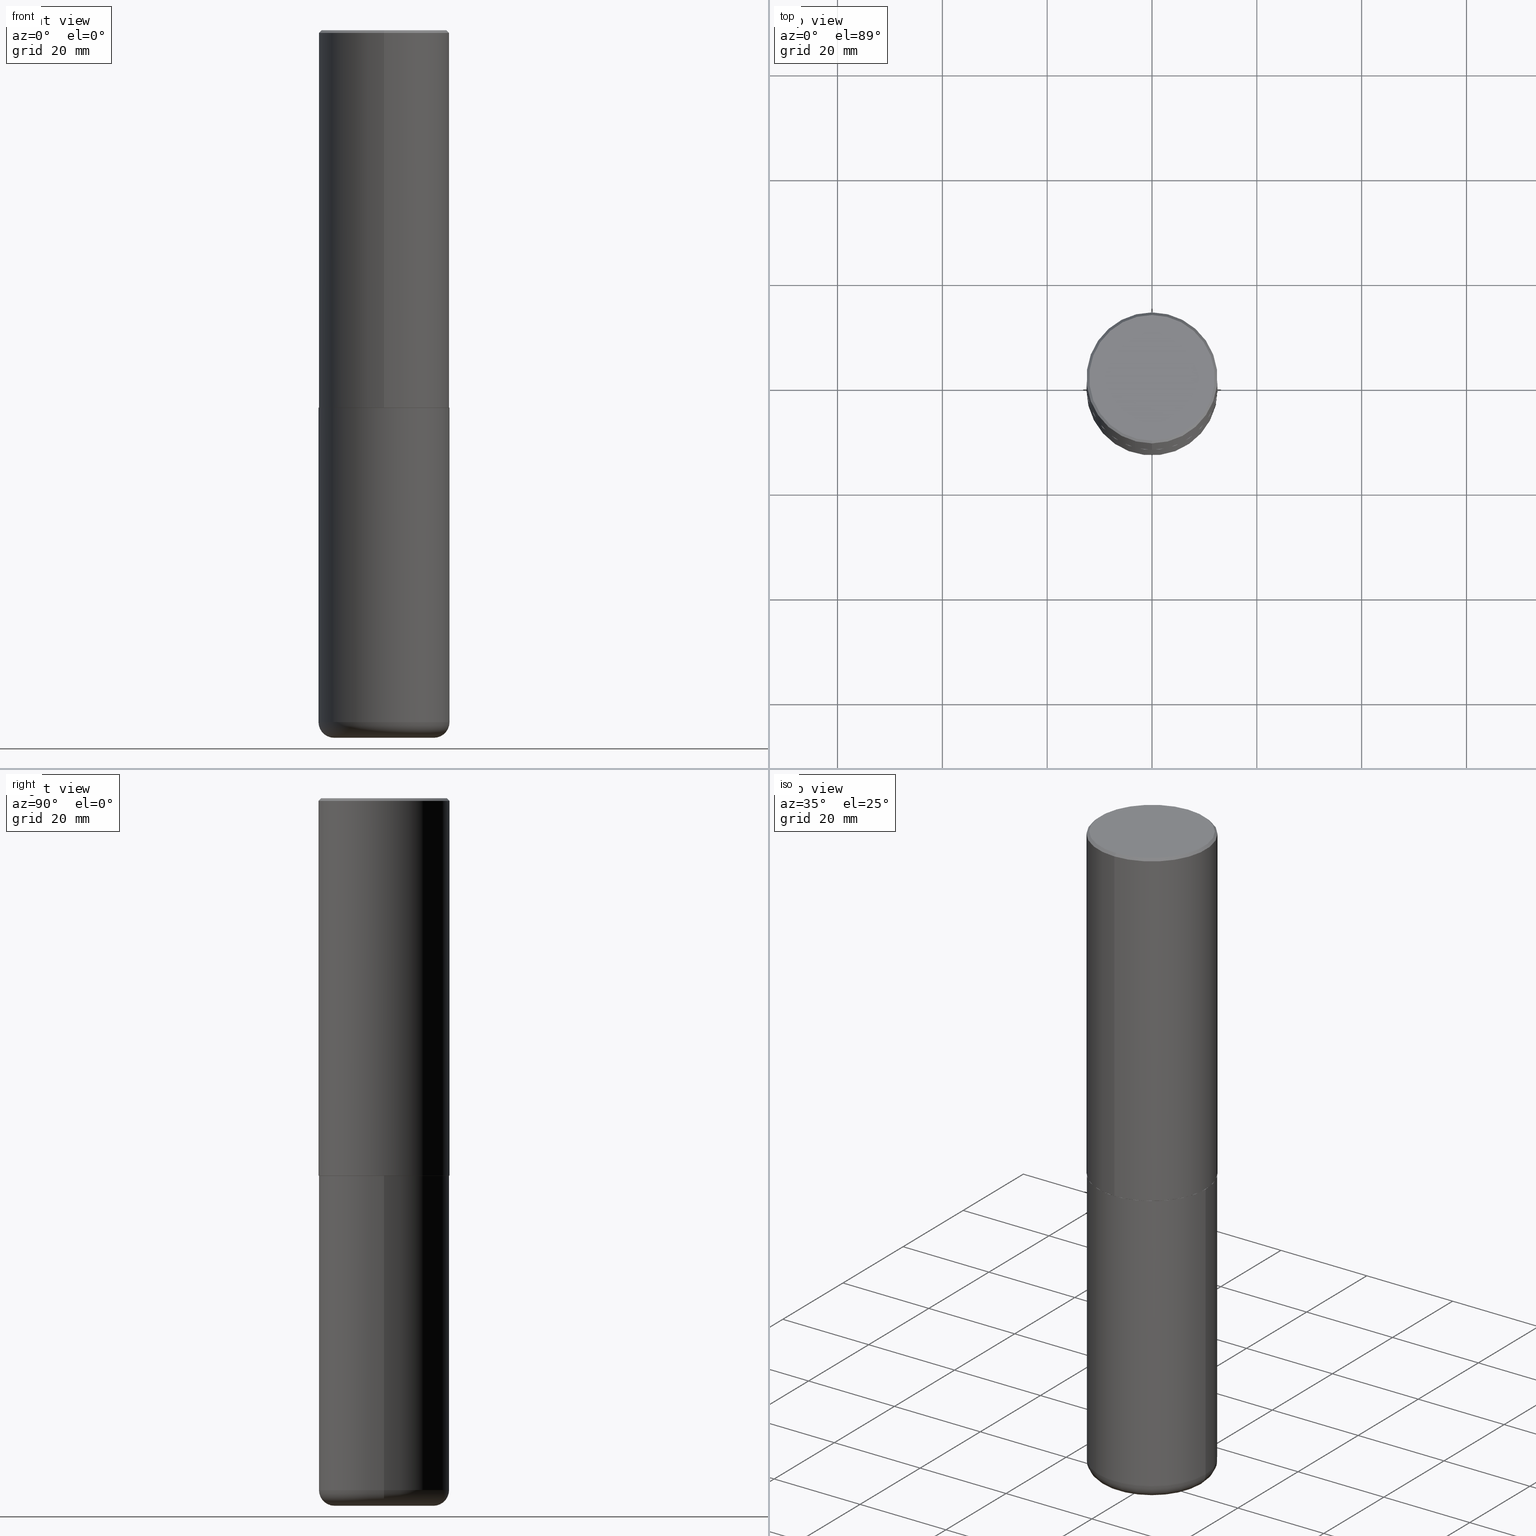
[diagram: canonical four-view strip — front | top / right | iso, engineering-drawing reading convention]
A machine part, canonical four-view strip (front | top / right | iso — engineering-drawing reading convention). The complete STEP part file that produces these views, byte-faithful:
ISO-10303-21;
HEADER;
FILE_DESCRIPTION (( 'STEP AP203' ),
    '1' );
FILE_NAME ('74879.STEP',
    '2024-05-02T19:26:49',
    ( '' ),
    ( '' ),
    'SwSTEP 2.0',
    'SolidWorks 2023',
    '' );
FILE_SCHEMA (( 'CONFIG_CONTROL_DESIGN' ));
ENDSEC;

DATA;
#1 = CARTESIAN_POINT ( 'NONE',  ( 1.270885683886353718E-28, -1.814487936983394718E-14, -5.196900000000000297 ) ) ;
#2 = EDGE_CURVE ( 'NONE', #266, #325, #334, .T. ) ;
#3 = DIRECTION ( 'NONE',  ( -2.445229172240879899E-29, 3.491824508290438613E-15, 1.000000000000000000 ) ) ;
#4 = ORIENTED_EDGE ( 'NONE', *, *, #130, .F. ) ;
#5 = DIRECTION ( 'NONE',  ( -2.445468806185136597E-29, 3.491481338843145583E-15, 1.000000000000000000 ) ) ;
#6 = CIRCLE ( 'NONE', #219, 0.4921500000000003094 ) ;
#7 = APPROVAL_PERSON_ORGANIZATION ( #375, #123, #170 ) ;
#8 = ORIENTED_EDGE ( 'NONE', *, *, #324, .T. ) ;
#9 = CARTESIAN_POINT ( 'NONE',  ( 3.436665081823296565E-15, 0.4921499999999999764, -0.02000000000000182535 ) ) ;
#10 = EDGE_CURVE ( 'NONE', #325, #43, #274, .T. ) ;
#11 = EDGE_LOOP ( 'NONE', ( #4, #75 ) ) ;
#12 = ORIENTED_EDGE ( 'NONE', *, *, #130, .T. ) ;
#13 = CARTESIAN_POINT ( 'NONE',  ( 6.932170424893007423E-29, -9.897302151218665974E-15, -2.834700000000000220 ) ) ;
#14 = ORIENTED_EDGE ( 'NONE', *, *, #357, .F. ) ;
#15 = COORDINATED_UNIVERSAL_TIME_OFFSET ( 5, 0, .BEHIND. ) ;
#16 = CC_DESIGN_PERSON_AND_ORGANIZATION_ASSIGNMENT ( #332, #46, ( #106 ) ) ;
#17 = CARTESIAN_POINT ( 'NONE',  ( 3.366835455046432873E-15, 0.4721499999999997921, -1.366781089788163134E-15 ) ) ;
#18 = ORIENTED_EDGE ( 'NONE', *, *, #349, .F. ) ;
#19 = CALENDAR_DATE ( 2024, 2, 5 ) ;
#20 = DIRECTION ( 'NONE',  ( -2.445229172240879899E-29, 3.491824508290438219E-15, 1.000000000000000000 ) ) ;
#21 = AXIS2_PLACEMENT_3D ( 'NONE', #149, #410, #378 ) ;
#22 = FACE_OUTER_BOUND ( 'NONE', #328, .T. ) ;
#23 = APPROVAL ( #306, 'UNSPECIFIED' ) ;
#24 = PERSON_AND_ORGANIZATION_ROLE ( 'creator' ) ;
#25 = CARTESIAN_POINT ( 'NONE',  ( 6.931491134551223323E-29, -9.898274933650907147E-15, -2.834700000000000220 ) ) ;
#26 = DIRECTION ( 'NONE',  ( -1.000000000000000000, 6.982962677686265922E-15, -4.876176775795935793E-29 ) ) ;
#27 = CIRCLE ( 'NONE', #371, 0.1181000000000000383 ) ;
#28 = CARTESIAN_POINT ( 'NONE',  ( 4.890458344481786073E-31, -6.983649016580912824E-17, -0.02000000000000010797 ) ) ;
#29 = CARTESIAN_POINT ( 'NONE',  ( -3.307789109625542536E-15, -0.4721499999999997921, 1.930548793390495776E-15 ) ) ;
#30 = CARTESIAN_POINT ( 'NONE',  ( 0.000000000000000000, 0.000000000000000000, 0.000000000000000000 ) ) ;
#31 = AXIS2_PLACEMENT_3D ( 'NONE', #399, #137, #194 ) ;
#32 = PLANE ( 'NONE',  #50 ) ;
#33 = ADVANCED_FACE ( 'NONE', ( #403 ), #407, .T. ) ;
#34 = DIRECTION ( 'NONE',  ( -2.445229172240879899E-29, 3.491824508290438219E-15, 1.000000000000000000 ) ) ;
#35 = CARTESIAN_POINT ( 'NONE',  ( 3.493383360364602601E-15, 0.4911499999999900390, -2.834700000000001996 ) ) ;
#36 = PRODUCT ( '74879', '74879', '', ( #396 ) ) ;
#37 = ORIENTED_EDGE ( 'NONE', *, *, #357, .T. ) ;
#38 = DIRECTION ( 'NONE',  ( -6.982962677686265922E-15, -1.000000000000000000, 3.337287582609300506E-15 ) ) ;
#39 = AXIS2_PLACEMENT_3D ( 'NONE', #255, #386, #182 ) ;
#40 = LOCAL_TIME ( 15, 26, 49.00000000000000000, #273 ) ;
#41 = ORIENTED_EDGE ( 'NONE', *, *, #354, .F. ) ;
#42 = FACE_OUTER_BOUND ( 'NONE', #11, .T. ) ;
#43 = VERTEX_POINT ( 'NONE', #56 ) ;
#44 = DIRECTION ( 'NONE',  ( 1.000000000000000000, -6.982962677686265922E-15, 0.000000000000000000 ) ) ;
#45 = ORIENTED_EDGE ( 'NONE', *, *, #401, .F. ) ;
#46 = PERSON_AND_ORGANIZATION_ROLE ( 'creator' ) ;
#47 = AXIS2_PLACEMENT_3D ( 'NONE', #55, #180, #411 ) ;
#48 = CC_DESIGN_PERSON_AND_ORGANIZATION_ASSIGNMENT ( #248, #113, ( #139 ) ) ;
#49 = ORIENTED_EDGE ( 'NONE', *, *, #10, .F. ) ;
#50 = AXIS2_PLACEMENT_3D ( 'NONE', #126, #353, #26 ) ;
#51 = SHAPE_DEFINITION_REPRESENTATION ( #267, #387 ) ;
#52 = FACE_OUTER_BOUND ( 'NONE', #333, .T. ) ;
#53 = CARTESIAN_POINT ( 'NONE',  ( -0.3740499999999999381, -1.548709426672329248E-14, -5.196900000000000297 ) ) ;
#54 = CIRCLE ( 'NONE', #269, 0.4921500000000000319 ) ;
#55 = CARTESIAN_POINT ( 'NONE',  ( 6.931491134551223323E-29, -9.898274933650907147E-15, -2.834700000000000220 ) ) ;
#56 = CARTESIAN_POINT ( 'NONE',  ( -3.376394089603258656E-15, -0.4921500000000000874, -0.01999999999999838712 ) ) ;
#57 = ADVANCED_FACE ( 'NONE', ( #247 ), #374, .T. ) ;
#58 = DIRECTION ( 'NONE',  ( -2.445468806185136597E-29, 3.491481338843145583E-15, 1.000000000000000000 ) ) ;
#59 = EDGE_CURVE ( 'NONE', #408, #297, #153, .T. ) ;
#60 = CLOSED_SHELL ( 'NONE', ( #414, #87, #330, #57, #173, #405 ) ) ;
#61 = CARTESIAN_POINT ( 'NONE',  ( 1.299766670487400218E-28, -1.855722331595131973E-14, -5.315000000000000391 ) ) ;
#62 = DIRECTION ( 'NONE',  ( -6.982962677686265922E-15, -1.000000000000000000, 3.330506545156063891E-15 ) ) ;
#63 = ADVANCED_FACE ( 'NONE', ( #370 ), #198, .T. ) ;
#64 = CARTESIAN_POINT ( 'NONE',  ( -3.436665081823228329E-15, -0.4921500000000101904, -2.833699999999998997 ) ) ;
#65 = AXIS2_PLACEMENT_3D ( 'NONE', #212, #82, #210 ) ;
#66 = APPROVAL_PERSON_ORGANIZATION ( #143, #276, #373 ) ;
#67 = DIRECTION ( 'NONE',  ( -2.445468806185136877E-29, 3.491481338843145188E-15, 1.000000000000000000 ) ) ;
#68 = EDGE_LOOP ( 'NONE', ( #272, #368, #172, #45 ) ) ;
#69 = EDGE_CURVE ( 'NONE', #225, #128, #417, .T. ) ;
#70 = VERTEX_POINT ( 'NONE', #17 ) ;
#71 = VERTEX_POINT ( 'NONE', #278 ) ;
#72 = DIRECTION ( 'NONE',  ( -2.445229172240879899E-29, 3.491824508290438219E-15, 1.000000000000000000 ) ) ;
#73 = CIRCLE ( 'NONE', #226, 0.3740499999999999381 ) ;
#74 = VERTEX_POINT ( 'NONE', #144 ) ;
#75 = ORIENTED_EDGE ( 'NONE', *, *, #316, .F. ) ;
#76 = DIRECTION ( 'NONE',  ( 2.438088387897960049E-29, -3.491481338843145188E-15, -1.000000000000000000 ) ) ;
#77 = EDGE_LOOP ( 'NONE', ( #133, #204 ) ) ;
#78 = APPLICATION_CONTEXT ( 'configuration controlled 3d designs of mechanical parts and assemblies' ) ;
#79 = APPROVAL_DATE_TIME ( #115, #123 ) ;
#80 = CC_DESIGN_PERSON_AND_ORGANIZATION_ASSIGNMENT ( #329, #192, ( #36 ) ) ;
#81 = EDGE_LOOP ( 'NONE', ( #206, #359, #165, #231 ) ) ;
#82 = DIRECTION ( 'NONE',  ( 2.445229172240879899E-29, -3.491824508290438219E-15, -1.000000000000000000 ) ) ;
#83 = AXIS2_PLACEMENT_3D ( 'NONE', #309, #380, #86 ) ;
#84 = AXIS2_PLACEMENT_3D ( 'NONE', #196, #72, #38 ) ;
#85 = CALENDAR_DATE ( 2024, 2, 5 ) ;
#86 = DIRECTION ( 'NONE',  ( 1.000000000000000000, -6.982962677686265922E-15, 0.000000000000000000 ) ) ;
#87 = ADVANCED_FACE ( 'NONE', ( #52 ), #355, .T. ) ;
#88 = ORIENTED_EDGE ( 'NONE', *, *, #69, .T. ) ;
#89 = CARTESIAN_POINT ( 'NONE',  ( -0.4921499999999999764, -1.464794329579061349E-14, -5.196900000000000297 ) ) ;
#90 = DIRECTION ( 'NONE',  ( 1.000000000000000000, -6.982962677686265133E-15, 0.000000000000000000 ) ) ;
#91 = DIRECTION ( 'NONE',  ( -6.982962677686265922E-15, -1.000000000000000000, 3.495297233588267070E-15 ) ) ;
#92 = PLANE ( 'NONE',  #39 ) ;
#93 = DIRECTION ( 'NONE',  ( 1.000000000000000000, -6.982962677686265133E-15, 0.000000000000000000 ) ) ;
#94 = ADVANCED_FACE ( 'NONE', ( #178 ), #385, .T. ) ;
#95 = DIRECTION ( 'NONE',  ( 1.000000000000000000, -6.982962677686270655E-15, 0.000000000000000000 ) ) ;
#96 = DIRECTION ( 'NONE',  ( -2.445468806185136877E-29, 3.491481338843145188E-15, 1.000000000000000000 ) ) ;
#97 = AXIS2_PLACEMENT_3D ( 'NONE', #28, #282, #259 ) ;
#98 = CIRCLE ( 'NONE', #235, 0.4921499999999999764 ) ;
#99 = DIRECTION ( 'NONE',  ( -6.982962677686265922E-15, -1.000000000000000000, 3.337287582609300506E-15 ) ) ;
#100 = EDGE_CURVE ( 'NONE', #185, #325, #147, .T. ) ;
#101 = EDGE_LOOP ( 'NONE', ( #195, #229, #361, #392 ) ) ;
#102 =( CONVERSION_BASED_UNIT ( 'INCH', #360 ) LENGTH_UNIT ( ) NAMED_UNIT ( #381 ) );
#103 = ORIENTED_EDGE ( 'NONE', *, *, #193, .F. ) ;
#104 = ORIENTED_EDGE ( 'NONE', *, *, #349, .T. ) ;
#105 = VECTOR ( 'NONE', #246, 39.37007874015748143 ) ;
#106 = PRODUCT_DEFINITION_FORMATION_WITH_SPECIFIED_SOURCE ( 'ANY', '', #36, .NOT_KNOWN. ) ;
#107 = EDGE_LOOP ( 'NONE', ( #351, #234, #162, #238 ) ) ;
#108 = ADVANCED_FACE ( 'NONE', ( #22 ), #412, .T. ) ;
#109 = DIRECTION ( 'NONE',  ( 4.937700262164532265E-15, 0.7071067811865429098, -0.7071067811865521247 ) ) ;
#110 = ORIENTED_EDGE ( 'NONE', *, *, #199, .F. ) ;
#111 = COORDINATED_UNIVERSAL_TIME_OFFSET ( 5, 0, .BEHIND. ) ;
#112 = DIRECTION ( 'NONE',  ( -6.982962677686266711E-15, -1.000000000000000000, 3.491824508290437824E-15 ) ) ;
#113 = PERSON_AND_ORGANIZATION_ROLE ( 'classification_officer' ) ;
#114 = CARTESIAN_POINT ( 'NONE',  ( 0.000000000000000000, 0.000000000000000000, 0.000000000000000000 ) ) ;
#115 = DATE_AND_TIME ( #303, #209 ) ;
#116 = CARTESIAN_POINT ( 'NONE',  ( -3.436665081823297354E-15, -0.4921500000000001984, 1.718501431755139742E-15 ) ) ;
#117 = PERSON_AND_ORGANIZATION ( #233, #250 ) ;
#118 = LINE ( 'NONE', #312, #281 ) ;
#119 = CC_DESIGN_DATE_AND_TIME_ASSIGNMENT ( #141, #377, ( #135 ) ) ;
#120 = LINE ( 'NONE', #352, #270 ) ;
#121 = DIRECTION ( 'NONE',  ( -6.982962677686266711E-15, -1.000000000000000000, 3.491481338843145583E-15 ) ) ;
#122 = DIRECTION ( 'NONE',  ( 5.024295867789434219E-15, 0.7071067811867430830, 0.7071067811863519514 ) ) ;
#123 = APPROVAL ( #211, 'UNSPECIFIED' ) ;
#124 = AXIS2_PLACEMENT_3D ( 'NONE', #418, #217, #252 ) ;
#125 = FACE_OUTER_BOUND ( 'NONE', #101, .T. ) ;
#126 = CARTESIAN_POINT ( 'NONE',  ( 6.932170424893007423E-29, -9.897302151218665974E-15, -2.834700000000000220 ) ) ;
#127 = FACE_OUTER_BOUND ( 'NONE', #81, .T. ) ;
#128 = VERTEX_POINT ( 'NONE', #89 ) ;
#129 = TOROIDAL_SURFACE ( 'NONE', #308, 0.3740499999999999381, 0.1181000000000000660 ) ;
#130 = EDGE_CURVE ( 'NONE', #74, #225, #73, .T. ) ;
#131 = VECTOR ( 'NONE', #290, 39.37007874015748143 ) ;
#132 = CARTESIAN_POINT ( 'NONE',  ( -3.376394089603258656E-15, -0.4921500000000000874, -0.01999999999999838712 ) ) ;
#133 = ORIENTED_EDGE ( 'NONE', *, *, #336, .T. ) ;
#134 = EDGE_LOOP ( 'NONE', ( #14, #394, #293, #103 ) ) ;
#135 = PRODUCT_DEFINITION ( 'UNKNOWN', '', #106, #358 ) ;
#136 = EDGE_LOOP ( 'NONE', ( #323, #37, #400, #49 ) ) ;
#137 = DIRECTION ( 'NONE',  ( -2.445229172240879899E-29, 3.491824508290438219E-15, 1.000000000000000000 ) ) ;
#138 = CLOSED_SHELL ( 'NONE', ( #94, #305, #63, #108, #33, #343, #213, #296 ) ) ;
#139 = SECURITY_CLASSIFICATION ( '', '', #369 ) ;
#140 = ORIENTED_EDGE ( 'NONE', *, *, #384, .F. ) ;
#141 = DATE_AND_TIME ( #19, #148 ) ;
#142 = DIRECTION ( 'NONE',  ( -2.445229172240879899E-29, 3.491824508290438219E-15, 1.000000000000000000 ) ) ;
#143 = PERSON_AND_ORGANIZATION ( #233, #250 ) ;
#144 = CARTESIAN_POINT ( 'NONE',  ( 0.3740499999999999381, -2.116920050553986882E-14, -5.315000000000000391 ) ) ;
#145 = APPROVAL_DATE_TIME ( #242, #276 ) ;
#146 = AXIS2_PLACEMENT_3D ( 'NONE', #311, #413, #382 ) ;
#147 = LINE ( 'NONE', #345, #163 ) ;
#148 = LOCAL_TIME ( 15, 26, 49.00000000000000000, #245 ) ;
#149 = CARTESIAN_POINT ( 'NONE',  ( 4.890458344481786073E-31, -6.983649016580912824E-17, -0.02000000000000010797 ) ) ;
#150 = DATE_AND_TIME ( #85, #200 ) ;
#151 = DIRECTION ( 'NONE',  ( -4.937700262165896205E-15, -0.7071067811867381980, 0.7071067811863568364 ) ) ;
#152 = LINE ( 'NONE', #347, #243 ) ;
#153 = CIRCLE ( 'NONE', #83, 0.4921499999999999764 ) ;
#154 = LOCAL_TIME ( 15, 26, 49.00000000000000000, #277 ) ;
#155 = CARTESIAN_POINT ( 'NONE',  ( 1.270885683886353718E-28, -1.814487936983394718E-14, -5.196900000000000297 ) ) ;
#156 = EDGE_CURVE ( 'NONE', #397, #185, #208, .T. ) ;
#157 = DIRECTION ( 'NONE',  ( 1.000000000000000000, -6.982962677686265133E-15, 0.000000000000000000 ) ) ;
#158 = CARTESIAN_POINT ( 'NONE',  ( 1.270885683886353718E-28, -1.814487936983394718E-14, -5.196900000000000297 ) ) ;
#159 = AXIS2_PLACEMENT_3D ( 'NONE', #383, #258, #91 ) ;
#160 = PLANE ( 'NONE',  #146 ) ;
#161 = FACE_OUTER_BOUND ( 'NONE', #107, .T. ) ;
#162 = ORIENTED_EDGE ( 'NONE', *, *, #336, .F. ) ;
#163 = VECTOR ( 'NONE', #151, 39.37007874015748143 ) ;
#164 = CARTESIAN_POINT ( 'NONE',  ( 0.000000000000000000, 0.000000000000000000, 0.000000000000000000 ) ) ;
#165 = ORIENTED_EDGE ( 'NONE', *, *, #100, .T. ) ;
#166 = EDGE_CURVE ( 'NONE', #128, #408, #118, .T. ) ;
#167 = ORIENTED_EDGE ( 'NONE', *, *, #181, .F. ) ;
#168 = DIRECTION ( 'NONE',  ( -1.000000000000000000, 6.982962677686265922E-15, -4.876176775795935793E-29 ) ) ;
#169 = ORIENTED_EDGE ( 'NONE', *, *, #59, .F. ) ;
#170 = APPROVAL_ROLE ( '' ) ;
#171 = AXIS2_PLACEMENT_3D ( 'NONE', #25, #20, #376 ) ;
#172 = ORIENTED_EDGE ( 'NONE', *, *, #280, .T. ) ;
#173 = ADVANCED_FACE ( 'NONE', ( #125 ), #129, .T. ) ;
#174 = PERSON_AND_ORGANIZATION ( #233, #250 ) ;
#175 = DIRECTION ( 'NONE',  ( 1.000000000000000000, -6.982962677686265922E-15, 4.876176775795935793E-29 ) ) ;
#176 = CC_DESIGN_DATE_AND_TIME_ASSIGNMENT ( #150, #337, ( #139 ) ) ;
#177 = APPROVAL_DATE_TIME ( #409, #23 ) ;
#178 = FACE_OUTER_BOUND ( 'NONE', #223, .T. ) ;
#179 = CARTESIAN_POINT ( 'NONE',  ( 6.929045905378983914E-29, -9.894783109142616722E-15, -2.833700000000000330 ) ) ;
#180 = DIRECTION ( 'NONE',  ( -2.445229172240879899E-29, 3.491824508290438219E-15, 1.000000000000000000 ) ) ;
#181 = EDGE_CURVE ( 'NONE', #325, #266, #6, .T. ) ;
#182 = DIRECTION ( 'NONE',  ( 6.982962677686265922E-15, 1.000000000000000000, -3.491824508290438613E-15 ) ) ;
#183 = MANIFOLD_SOLID_BREP ( 'Body-Move/Copy2[1]', #60 ) ;
#184 = CIRCLE ( 'NONE', #159, 0.4921500000000000319 ) ;
#185 = VERTEX_POINT ( 'NONE', #189 ) ;
#186 = CC_DESIGN_APPROVAL ( #276, ( #106 ) ) ;
#187 = EDGE_CURVE ( 'NONE', #268, #70, #214, .T. ) ;
#188 = CARTESIAN_POINT ( 'NONE',  ( 6.929045905378983914E-29, -9.894783109142616722E-15, -2.833700000000000330 ) ) ;
#189 = CARTESIAN_POINT ( 'NONE',  ( -3.429682119145539948E-15, -0.4911500000000098565, -2.834699999999998443 ) ) ;
#190 = CARTESIAN_POINT ( 'NONE',  ( 0.4921499999999999764, -1.333396723304196175E-14, -2.834700000000000220 ) ) ;
#191 = AXIS2_PLACEMENT_3D ( 'NONE', #114, #142, #112 ) ;
#192 = PERSON_AND_ORGANIZATION_ROLE ( 'design_owner' ) ;
#193 = EDGE_CURVE ( 'NONE', #71, #43, #390, .T. ) ;
#194 = DIRECTION ( 'NONE',  ( -6.982962677686265922E-15, -1.000000000000000000, 3.491824508290437824E-15 ) ) ;
#195 = ORIENTED_EDGE ( 'NONE', *, *, #69, .F. ) ;
#196 = CARTESIAN_POINT ( 'NONE',  ( 6.931491134551223323E-29, -9.898274933650907147E-15, -2.834700000000000220 ) ) ;
#197 = ORIENTED_EDGE ( 'NONE', *, *, #100, .F. ) ;
#198 = CONICAL_SURFACE ( 'NONE', #65, 0.4921500000000000319, 0.7853981633974452814 ) ;
#199 = EDGE_CURVE ( 'NONE', #74, #261, #27, .T. ) ;
#200 = LOCAL_TIME ( 15, 26, 49.00000000000000000, #111 ) ;
#201 = DIRECTION ( 'NONE',  ( 1.000000000000000000, 0.000000000000000000, 0.000000000000000000 ) ) ;
#202 = ORIENTED_EDGE ( 'NONE', *, *, #401, .T. ) ;
#203 = DIRECTION ( 'NONE',  ( 1.000000000000000000, -6.982962677686265922E-15, 4.876176775795935793E-29 ) ) ;
#204 = ORIENTED_EDGE ( 'NONE', *, *, #59, .T. ) ;
#205 = PERSON_AND_ORGANIZATION ( #233, #250 ) ;
#206 = ORIENTED_EDGE ( 'NONE', *, *, #287, .F. ) ;
#207 = CALENDAR_DATE ( 2024, 2, 5 ) ;
#208 = CIRCLE ( 'NONE', #47, 0.4911499999999999755 ) ;
#209 = LOCAL_TIME ( 15, 26, 49.00000000000000000, #15 ) ;
#210 = DIRECTION ( 'NONE',  ( 6.982962677686265922E-15, 1.000000000000000000, -3.495297233588267070E-15 ) ) ;
#211 = APPROVAL_STATUS ( 'not_yet_approved' ) ;
#212 = CARTESIAN_POINT ( 'NONE',  ( 4.890458344481786073E-31, -6.983649016580912824E-17, -0.02000000000000010797 ) ) ;
#213 = ADVANCED_FACE ( 'NONE', ( #221 ), #160, .F. ) ;
#214 = CIRCLE ( 'NONE', #124, 0.4721499999999997921 ) ;
#215 = CARTESIAN_POINT ( 'NONE',  ( 1.299766670487400218E-28, -1.855722331595131973E-14, -5.315000000000000391 ) ) ;
#216 = AXIS2_PLACEMENT_3D ( 'NONE', #61, #222, #93 ) ;
#217 = DIRECTION ( 'NONE',  ( -2.445229172240879899E-29, 3.491824508290438219E-15, 1.000000000000000000 ) ) ;
#218 = DIRECTION ( 'NONE',  ( -2.445229172240879899E-29, 3.491824508290438219E-15, 1.000000000000000000 ) ) ;
#219 = AXIS2_PLACEMENT_3D ( 'NONE', #188, #315, #62 ) ;
#220 = APPROVAL_PERSON_ORGANIZATION ( #174, #23, #402 ) ;
#221 = FACE_OUTER_BOUND ( 'NONE', #331, .T. ) ;
#222 = DIRECTION ( 'NONE',  ( -2.445468806185136597E-29, 3.491481338843145583E-15, 1.000000000000000000 ) ) ;
#223 = EDGE_LOOP ( 'NONE', ( #295, #339, #167, #197 ) ) ;
#224 = CARTESIAN_POINT ( 'NONE',  ( -0.3740499999999999381, -1.527369075431564084E-14, -5.315000000000000391 ) ) ;
#225 = VERTEX_POINT ( 'NONE', #224 ) ;
#226 = AXIS2_PLACEMENT_3D ( 'NONE', #215, #344, #90 ) ;
#227 = VECTOR ( 'NONE', #3, 39.37007874015748143 ) ;
#228 = CYLINDRICAL_SURFACE ( 'NONE', #391, 0.4921499999999999764 ) ;
#229 = ORIENTED_EDGE ( 'NONE', *, *, #316, .T. ) ;
#230 = EDGE_CURVE ( 'NONE', #128, #261, #363, .T. ) ;
#231 = ORIENTED_EDGE ( 'NONE', *, *, #2, .F. ) ;
#232 = CARTESIAN_POINT ( 'NONE',  ( 0.000000000000000000, 0.000000000000000000, 0.000000000000000000 ) ) ;
#233 = PERSON ( 'UNSPECIFIED', 'UNSPECIFIED', 'UNSPECIFIED', ('UNSPECIFIED'), ('UNSPECIFIED'), ('UNSPECIFIED') ) ;
#234 = ORIENTED_EDGE ( 'NONE', *, *, #166, .T. ) ;
#235 = AXIS2_PLACEMENT_3D ( 'NONE', #13, #5, #44 ) ;
#236 = EDGE_LOOP ( 'NONE', ( #104, #364 ) ) ;
#237 = CARTESIAN_POINT ( 'NONE',  ( 1.299766670487400218E-28, -1.855722331595131973E-14, -5.315000000000000391 ) ) ;
#238 = ORIENTED_EDGE ( 'NONE', *, *, #324, .F. ) ;
#239 = PERSON_AND_ORGANIZATION_ROLE ( 'design_supplier' ) ;
#240 = CC_DESIGN_PERSON_AND_ORGANIZATION_ASSIGNMENT ( #117, #24, ( #135 ) ) ;
#241 = CARTESIAN_POINT ( 'NONE',  ( 0.000000000000000000, 0.000000000000000000, 0.000000000000000000 ) ) ;
#242 = DATE_AND_TIME ( #404, #40 ) ;
#243 = VECTOR ( 'NONE', #122, 39.37007874015748143 ) ;
#244 = DIRECTION ( 'NONE',  ( -6.982962677686265922E-15, -1.000000000000000000, 3.330506545156063891E-15 ) ) ;
#245 = COORDINATED_UNIVERSAL_TIME_OFFSET ( 5, 0, .BEHIND. ) ;
#246 = DIRECTION ( 'NONE',  ( -2.445229172240879899E-29, 3.491824508290438613E-15, 1.000000000000000000 ) ) ;
#247 = FACE_OUTER_BOUND ( 'NONE', #299, .T. ) ;
#248 = PERSON_AND_ORGANIZATION ( #233, #250 ) ;
#249 = DIRECTION ( 'NONE',  ( -2.445229172240879899E-29, 3.491824508290438219E-15, 1.000000000000000000 ) ) ;
#250 = ORGANIZATION ( 'UNSPECIFIED', 'UNSPECIFIED', '' ) ;
#251 = EDGE_CURVE ( 'NONE', #261, #128, #54, .T. ) ;
#252 = DIRECTION ( 'NONE',  ( -6.982962677686265922E-15, -1.000000000000000000, 3.491824508290437824E-15 ) ) ;
#253 = FACE_OUTER_BOUND ( 'NONE', #236, .T. ) ;
#254 = CC_DESIGN_PERSON_AND_ORGANIZATION_ASSIGNMENT ( #205, #239, ( #106 ) ) ;
#255 = CARTESIAN_POINT ( 'NONE',  ( 3.297005828269569180E-15, 0.4721499999999997921, -1.507723015688746393E-15 ) ) ;
#256 = AXIS2_PLACEMENT_3D ( 'NONE', #310, #279, #307 ) ;
#257 = AXIS2_PLACEMENT_3D ( 'NONE', #232, #362, #201 ) ;
#258 = DIRECTION ( 'NONE',  ( -2.445229172240879899E-29, 3.491824508290438219E-15, 1.000000000000000000 ) ) ;
#259 = DIRECTION ( 'NONE',  ( -6.982962677686265922E-15, -1.000000000000000000, 3.495297233588267070E-15 ) ) ;
#260 = LINE ( 'NONE', #9, #365 ) ;
#261 = VERTEX_POINT ( 'NONE', #285 ) ;
#262 = AXIS2_PLACEMENT_3D ( 'NONE', #179, #249, #244 ) ;
#263 = PLANE ( 'NONE',  #275 ) ;
#264 = ORIENTED_EDGE ( 'NONE', *, *, #193, .T. ) ;
#265 =( NAMED_UNIT ( * ) SI_UNIT ( $, .STERADIAN. ) SOLID_ANGLE_UNIT ( ) );
#266 = VERTEX_POINT ( 'NONE', #416 ) ;
#267 = PRODUCT_DEFINITION_SHAPE ( 'NONE', 'NONE',  #135 ) ;
#268 = VERTEX_POINT ( 'NONE', #29 ) ;
#269 = AXIS2_PLACEMENT_3D ( 'NONE', #1, #58, #286 ) ;
#270 = VECTOR ( 'NONE', #96, 39.37007874015748143 ) ;
#271 = LINE ( 'NONE', #322, #227 ) ;
#272 = ORIENTED_EDGE ( 'NONE', *, *, #187, .F. ) ;
#273 = COORDINATED_UNIVERSAL_TIME_OFFSET ( 5, 0, .BEHIND. ) ;
#274 = LINE ( 'NONE', #116, #105 ) ;
#275 = AXIS2_PLACEMENT_3D ( 'NONE', #237, #76, #168 ) ;
#276 = APPROVAL ( #302, 'UNSPECIFIED' ) ;
#277 = COORDINATED_UNIVERSAL_TIME_OFFSET ( 5, 0, .BEHIND. ) ;
#278 = CARTESIAN_POINT ( 'NONE',  ( 3.436665081823296565E-15, 0.4921499999999999764, -0.02000000000000182535 ) ) ;
#279 = DIRECTION ( 'NONE',  ( -2.445468806185136597E-29, 3.491481338843145583E-15, 1.000000000000000000 ) ) ;
#280 = EDGE_CURVE ( 'NONE', #43, #71, #184, .T. ) ;
#281 = VECTOR ( 'NONE', #67, 39.37007874015748143 ) ;
#282 = DIRECTION ( 'NONE',  ( -2.445229172240879899E-29, 3.491824508290438219E-15, 1.000000000000000000 ) ) ;
#283 = CIRCLE ( 'NONE', #216, 0.3740499999999999381 ) ;
#284 = DIRECTION ( 'NONE',  ( 1.000000000000000000, -6.982962677686266711E-15, 4.883557194083112340E-29 ) ) ;
#285 = CARTESIAN_POINT ( 'NONE',  ( 0.4921499999999999764, -2.158154445165724138E-14, -5.196900000000000297 ) ) ;
#286 = DIRECTION ( 'NONE',  ( 1.000000000000000000, -6.982962677686265133E-15, 0.000000000000000000 ) ) ;
#287 = EDGE_CURVE ( 'NONE', #397, #266, #152, .T. ) ;
#288 = CIRCLE ( 'NONE', #31, 0.4721499999999997921 ) ;
#289 = FACE_OUTER_BOUND ( 'NONE', #136, .T. ) ;
#290 = DIRECTION ( 'NONE',  ( -4.851104656540949287E-15, -0.7071067811865477948, -0.7071067811865472397 ) ) ;
#291 = ORIENTED_EDGE ( 'NONE', *, *, #230, .T. ) ;
#292 = APPLICATION_CONTEXT ( 'configuration controlled 3d designs of mechanical parts and assemblies' ) ;
#293 = ORIENTED_EDGE ( 'NONE', *, *, #10, .T. ) ;
#294 =( LENGTH_UNIT ( ) NAMED_UNIT ( * ) SI_UNIT ( $, .METRE. ) );
#295 = ORIENTED_EDGE ( 'NONE', *, *, #384, .T. ) ;
#296 = ADVANCED_FACE ( 'NONE', ( #253 ), #92, .F. ) ;
#297 = VERTEX_POINT ( 'NONE', #190 ) ;
#298 = CARTESIAN_POINT ( 'NONE',  ( -0.4921499999999999764, -1.052415468648297289E-14, -2.834700000000000220 ) ) ;
#299 = EDGE_LOOP ( 'NONE', ( #366, #291, #8, #169 ) ) ;
#300 = AXIS2_PLACEMENT_3D ( 'NONE', #241, #340, #175 ) ;
#301 = CC_DESIGN_SECURITY_CLASSIFICATION ( #139, ( #106 ) ) ;
#302 = APPROVAL_STATUS ( 'not_yet_approved' ) ;
#303 = CALENDAR_DATE ( 2024, 2, 5 ) ;
#304 = DIRECTION ( 'NONE',  ( -1.000000000000000000, 7.105427357601001859E-15, 0.000000000000000000 ) ) ;
#305 = ADVANCED_FACE ( 'NONE', ( #289 ), #388, .T. ) ;
#306 = APPROVAL_STATUS ( 'not_yet_approved' ) ;
#307 = DIRECTION ( 'NONE',  ( 1.000000000000000000, -6.982962677686266711E-15, 4.883557194083112340E-29 ) ) ;
#308 = AXIS2_PLACEMENT_3D ( 'NONE', #158, #350, #284 ) ;
#309 = CARTESIAN_POINT ( 'NONE',  ( 6.932170424893007423E-29, -9.897302151218665974E-15, -2.834700000000000220 ) ) ;
#310 = CARTESIAN_POINT ( 'NONE',  ( 1.270885683886353718E-28, -1.814487936983394718E-14, -5.196900000000000297 ) ) ;
#311 = CARTESIAN_POINT ( 'NONE',  ( 6.931491134551223323E-29, -9.898274933650907147E-15, -2.834700000000000220 ) ) ;
#312 = CARTESIAN_POINT ( 'NONE',  ( -0.4921499999999999764, 3.496936074043332897E-15, -2.420853904668951509E-29 ) ) ;
#313 = CONICAL_SURFACE ( 'NONE', #335, 0.4911499999999999755, 0.7853981633977213939 ) ;
#314 = MANIFOLD_SOLID_BREP ( 'Body-Move/Copy2[2]', #138 ) ;
#315 = DIRECTION ( 'NONE',  ( -2.445229172240879899E-29, 3.491824508290438219E-15, 1.000000000000000000 ) ) ;
#316 = EDGE_CURVE ( 'NONE', #225, #74, #283, .T. ) ;
#317 = CARTESIAN_POINT ( 'NONE',  ( 0.3740499999999999381, -2.075685655942249311E-14, -5.196900000000000297 ) ) ;
#318 = FACE_OUTER_BOUND ( 'NONE', #77, .T. ) ;
#319 = AXIS2_PLACEMENT_3D ( 'NONE', #155, #415, #157 ) ;
#320 = APPLICATION_PROTOCOL_DEFINITION ( 'international standard', 'config_control_design', 1994, #78 ) ;
#321 = UNCERTAINTY_MEASURE_WITH_UNIT (LENGTH_MEASURE( 1.000000000000000082E-05 ), #102, 'distance_accuracy_value', 'NONE');
#322 = CARTESIAN_POINT ( 'NONE',  ( 3.496936074043333686E-15, 0.4921500000000001984, -1.718501431755139742E-15 ) ) ;
#323 = ORIENTED_EDGE ( 'NONE', *, *, #181, .T. ) ;
#324 = EDGE_CURVE ( 'NONE', #261, #297, #120, .T. ) ;
#325 = VERTEX_POINT ( 'NONE', #64 ) ;
#326 = CIRCLE ( 'NONE', #84, 0.4911499999999999755 ) ;
#327 = APPLICATION_PROTOCOL_DEFINITION ( 'international standard', 'config_control_design', 1994, #292 ) ;
#328 = EDGE_LOOP ( 'NONE', ( #41, #18, #202, #264 ) ) ;
#329 = PERSON_AND_ORGANIZATION ( #233, #250 ) ;
#330 = ADVANCED_FACE ( 'NONE', ( #318 ), #32, .F. ) ;
#331 = EDGE_LOOP ( 'NONE', ( #140, #395 ) ) ;
#332 = PERSON_AND_ORGANIZATION ( #233, #250 ) ;
#333 = EDGE_LOOP ( 'NONE', ( #12, #88, #406, #110 ) ) ;
#334 = CIRCLE ( 'NONE', #262, 0.4921500000000003094 ) ;
#335 = AXIS2_PLACEMENT_3D ( 'NONE', #356, #34, #99 ) ;
#336 = EDGE_CURVE ( 'NONE', #297, #408, #98, .T. ) ;
#337 = DATE_TIME_ROLE ( 'classification_date' ) ;
#338 = DIRECTION ( 'NONE',  ( 7.105427357601001859E-15, 1.000000000000000000, -3.491481338843145583E-15 ) ) ;
#339 = ORIENTED_EDGE ( 'NONE', *, *, #287, .T. ) ;
#340 = DIRECTION ( 'NONE',  ( -2.445468806185136597E-29, 3.491481338843145583E-15, 1.000000000000000000 ) ) ;
#341 = AXIS2_PLACEMENT_3D ( 'NONE', #53, #338, #304 ) ;
#342 =( GEOMETRIC_REPRESENTATION_CONTEXT ( 3 ) GLOBAL_UNCERTAINTY_ASSIGNED_CONTEXT ( ( #321 ) ) GLOBAL_UNIT_ASSIGNED_CONTEXT ( ( #102, #367, #265 ) ) REPRESENTATION_CONTEXT ( 'NONE', 'WORKASPACE' ) );
#343 = ADVANCED_FACE ( 'NONE', ( #127 ), #313, .T. ) ;
#344 = DIRECTION ( 'NONE',  ( -2.445468806185136597E-29, 3.491481338843145583E-15, 1.000000000000000000 ) ) ;
#345 = CARTESIAN_POINT ( 'NONE',  ( -3.429682119145539948E-15, -0.4911500000000098565, -2.834699999999998443 ) ) ;
#346 = PRODUCT_RELATED_PRODUCT_CATEGORY ( 'detail', '', ( #36 ) ) ;
#347 = CARTESIAN_POINT ( 'NONE',  ( 3.489830646685800520E-15, 0.4911499999999900390, -2.834700000000001996 ) ) ;
#348 = DIRECTION ( 'NONE',  ( -6.982962677686266711E-15, -1.000000000000000000, 3.491824508290437824E-15 ) ) ;
#349 = EDGE_CURVE ( 'NONE', #70, #268, #288, .T. ) ;
#350 = DIRECTION ( 'NONE',  ( -2.445468806185136597E-29, 3.491481338843145583E-15, 1.000000000000000000 ) ) ;
#351 = ORIENTED_EDGE ( 'NONE', *, *, #251, .T. ) ;
#352 = CARTESIAN_POINT ( 'NONE',  ( 0.4921499999999999764, -3.436665081823295777E-15, 2.399810400207969603E-29 ) ) ;
#353 = DIRECTION ( 'NONE',  ( 2.438088387897960049E-29, -3.491481338843145188E-15, -1.000000000000000000 ) ) ;
#354 = EDGE_CURVE ( 'NONE', #268, #43, #393, .T. ) ;
#355 = TOROIDAL_SURFACE ( 'NONE', #256, 0.3740499999999999381, 0.1181000000000000660 ) ;
#356 = CARTESIAN_POINT ( 'NONE',  ( 6.931491134551223323E-29, -9.898274933650907147E-15, -2.834700000000000220 ) ) ;
#357 = EDGE_CURVE ( 'NONE', #266, #71, #271, .T. ) ;
#358 = DESIGN_CONTEXT ( 'detailed design', #78, 'design' ) ;
#359 = ORIENTED_EDGE ( 'NONE', *, *, #156, .T. ) ;
#360 = LENGTH_MEASURE_WITH_UNIT ( LENGTH_MEASURE( 0.02539999999999999897 ), #294 );
#361 = ORIENTED_EDGE ( 'NONE', *, *, #199, .T. ) ;
#362 = DIRECTION ( 'NONE',  ( 0.000000000000000000, 0.000000000000000000, 1.000000000000000000 ) ) ;
#363 = CIRCLE ( 'NONE', #319, 0.4921500000000000319 ) ;
#364 = ORIENTED_EDGE ( 'NONE', *, *, #187, .T. ) ;
#365 = VECTOR ( 'NONE', #109, 39.37007874015748143 ) ;
#366 = ORIENTED_EDGE ( 'NONE', *, *, #166, .F. ) ;
#367 =( NAMED_UNIT ( * ) PLANE_ANGLE_UNIT ( ) SI_UNIT ( $, .RADIAN. ) );
#368 = ORIENTED_EDGE ( 'NONE', *, *, #354, .T. ) ;
#369 = SECURITY_CLASSIFICATION_LEVEL ( 'unclassified' ) ;
#370 = FACE_OUTER_BOUND ( 'NONE', #68, .T. ) ;
#371 = AXIS2_PLACEMENT_3D ( 'NONE', #317, #121, #95 ) ;
#372 = CC_DESIGN_APPROVAL ( #23, ( #135 ) ) ;
#373 = APPROVAL_ROLE ( '' ) ;
#374 = CYLINDRICAL_SURFACE ( 'NONE', #300, 0.4921499999999999764 ) ;
#375 = PERSON_AND_ORGANIZATION ( #233, #250 ) ;
#376 = DIRECTION ( 'NONE',  ( -6.982962677686265922E-15, -1.000000000000000000, 3.337287582609300506E-15 ) ) ;
#377 = DATE_TIME_ROLE ( 'creation_date' ) ;
#378 = DIRECTION ( 'NONE',  ( 6.982962677686265922E-15, 1.000000000000000000, -3.495297233588267070E-15 ) ) ;
#379 = CC_DESIGN_APPROVAL ( #123, ( #139 ) ) ;
#380 = DIRECTION ( 'NONE',  ( -2.445468806185136597E-29, 3.491481338843145583E-15, 1.000000000000000000 ) ) ;
#381 = DIMENSIONAL_EXPONENTS ( 1.000000000000000000, 0.000000000000000000, 0.000000000000000000, 0.000000000000000000, 0.000000000000000000, 0.000000000000000000, 0.000000000000000000 ) ;
#382 = DIRECTION ( 'NONE',  ( -6.982962677686265922E-15, -1.000000000000000000, 3.491824508290438613E-15 ) ) ;
#383 = CARTESIAN_POINT ( 'NONE',  ( 4.890458344481786073E-31, -6.983649016580912824E-17, -0.02000000000000010797 ) ) ;
#384 = EDGE_CURVE ( 'NONE', #185, #397, #326, .T. ) ;
#385 = CONICAL_SURFACE ( 'NONE', #171, 0.4911499999999999755, 0.7853981633977213939 ) ;
#386 = DIRECTION ( 'NONE',  ( 2.445229172240879339E-29, -3.491824508290438613E-15, -1.000000000000000000 ) ) ;
#387 = ADVANCED_BREP_SHAPE_REPRESENTATION ( '74879', ( #183, #314, #257 ), #342 ) ;
#388 = CYLINDRICAL_SURFACE ( 'NONE', #398, 0.4921500000000001984 ) ;
#389 = DIRECTION ( 'NONE',  ( -2.445468806185136597E-29, 3.491481338843145583E-15, 1.000000000000000000 ) ) ;
#390 = CIRCLE ( 'NONE', #97, 0.4921500000000000319 ) ;
#391 = AXIS2_PLACEMENT_3D ( 'NONE', #164, #389, #203 ) ;
#392 = ORIENTED_EDGE ( 'NONE', *, *, #230, .F. ) ;
#393 = LINE ( 'NONE', #132, #131 ) ;
#394 = ORIENTED_EDGE ( 'NONE', *, *, #2, .T. ) ;
#395 = ORIENTED_EDGE ( 'NONE', *, *, #156, .F. ) ;
#396 = MECHANICAL_CONTEXT ( 'NONE', #292, 'mechanical' ) ;
#397 = VERTEX_POINT ( 'NONE', #35 ) ;
#398 = AXIS2_PLACEMENT_3D ( 'NONE', #30, #218, #348 ) ;
#399 = CARTESIAN_POINT ( 'NONE',  ( -6.892706176078369160E-45, 9.842889422106222579E-31, 2.818838518011663701E-16 ) ) ;
#400 = ORIENTED_EDGE ( 'NONE', *, *, #280, .F. ) ;
#401 = EDGE_CURVE ( 'NONE', #70, #71, #260, .T. ) ;
#402 = APPROVAL_ROLE ( '' ) ;
#403 = FACE_OUTER_BOUND ( 'NONE', #134, .T. ) ;
#404 = CALENDAR_DATE ( 2024, 2, 5 ) ;
#405 = ADVANCED_FACE ( 'NONE', ( #42 ), #263, .T. ) ;
#406 = ORIENTED_EDGE ( 'NONE', *, *, #251, .F. ) ;
#407 = CYLINDRICAL_SURFACE ( 'NONE', #191, 0.4921500000000001984 ) ;
#408 = VERTEX_POINT ( 'NONE', #298 ) ;
#409 = DATE_AND_TIME ( #207, #154 ) ;
#410 = DIRECTION ( 'NONE',  ( 2.445229172240879899E-29, -3.491824508290438219E-15, -1.000000000000000000 ) ) ;
#411 = DIRECTION ( 'NONE',  ( -6.982962677686265922E-15, -1.000000000000000000, 3.337287582609300506E-15 ) ) ;
#412 = CONICAL_SURFACE ( 'NONE', #21, 0.4921500000000000319, 0.7853981633974452814 ) ;
#413 = DIRECTION ( 'NONE',  ( -2.445229172240879339E-29, 3.491824508290438613E-15, 1.000000000000000000 ) ) ;
#414 = ADVANCED_FACE ( 'NONE', ( #161 ), #228, .T. ) ;
#415 = DIRECTION ( 'NONE',  ( -2.445468806185136597E-29, 3.491481338843145583E-15, 1.000000000000000000 ) ) ;
#416 = CARTESIAN_POINT ( 'NONE',  ( 3.496936074043369579E-15, 0.4921499999999904840, -2.833700000000002106 ) ) ;
#417 = CIRCLE ( 'NONE', #341, 0.1181000000000000383 ) ;
#418 = CARTESIAN_POINT ( 'NONE',  ( -6.892706176078369160E-45, 9.842889422106222579E-31, 2.818838518011663701E-16 ) ) ;
ENDSEC;
END-ISO-10303-21;
